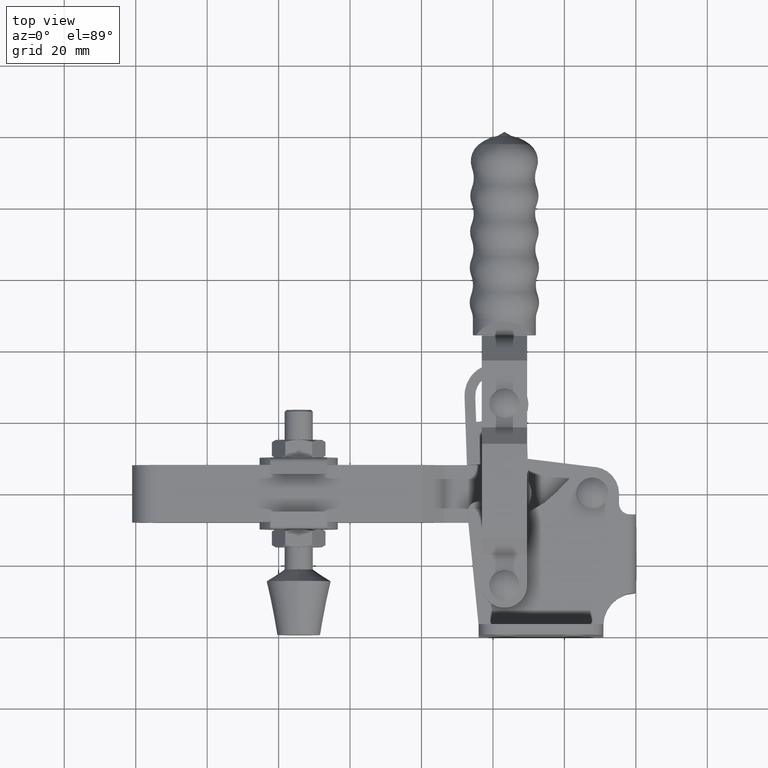
[diagram: clean part render]
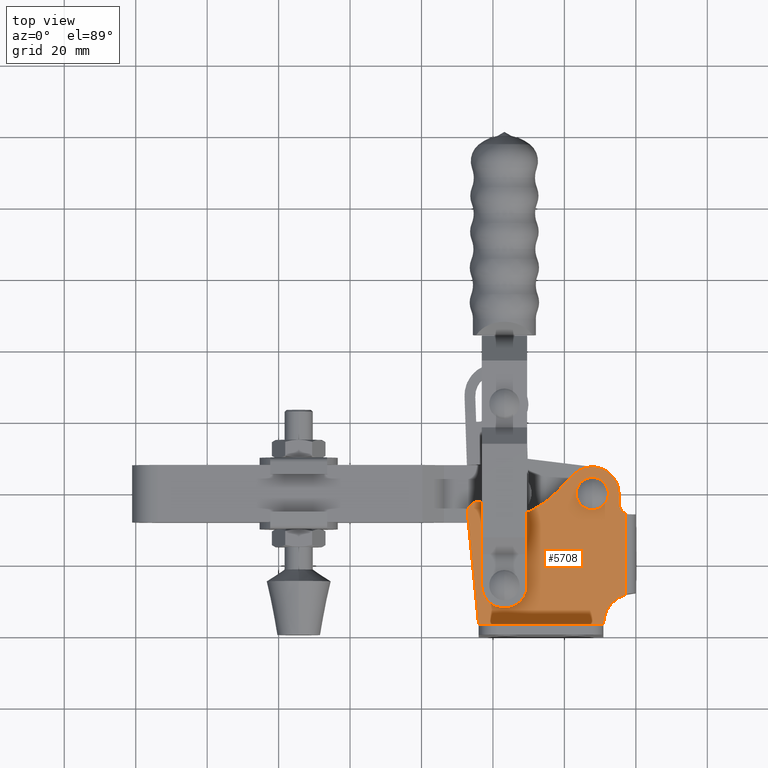
[diagram: same view with one face highlighted and labeled with its STEP entity id]
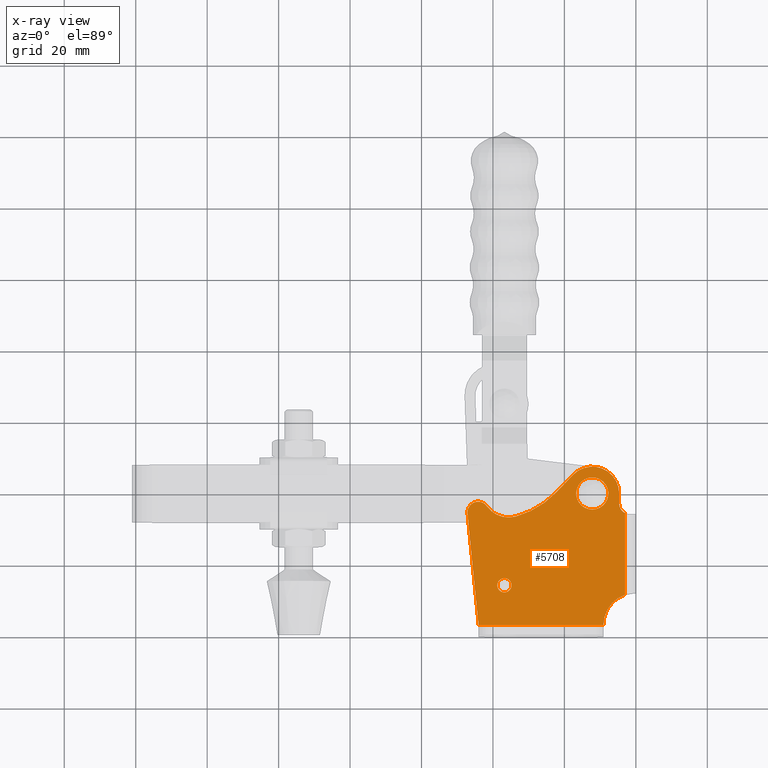
[diagram: x-ray of the same camera — body ghosted, the highlighted face saturated]
A machine part, top view. The second image highlights one B-rep face of the part: STEP entity #5708.
The next image is the same camera in x-ray: the body ghosted, the highlighted face saturated — about 0% of this face is hidden behind the body in this view.
In plain terms, the highlighted planar face has unit normal (0, 0, 1).
Its self-contained STEP definition (entity closure, byte-faithful):
#128 = AXIS2_PLACEMENT_3D ( 'NONE', #12003, #6435, #923 ) ;
#351 = CARTESIAN_POINT ( 'NONE',  ( -44.00000000000004300, 3.000000000000002700, 6.000000000000000000 ) ) ;
#510 = CIRCLE ( 'NONE', #9444, 4.500000000000000900 ) ;
#619 = DIRECTION ( 'NONE',  ( 0.0000000000000000000, 0.0000000000000000000, 1.000000000000000000 ) ) ;
#857 = DIRECTION ( 'NONE',  ( 0.0000000000000000000, 0.0000000000000000000, 1.000000000000000000 ) ) ;
#904 = CARTESIAN_POINT ( 'NONE',  ( -3.000000000000113700, 11.51997652578924300, 6.000000000000060400 ) ) ;
#905 = ORIENTED_EDGE ( 'NONE', *, *, #10791, .T. ) ;
#923 = DIRECTION ( 'NONE',  ( 1.000000000000000000, 0.0000000000000000000, 0.0000000000000000000 ) ) ;
#933 = DIRECTION ( 'NONE',  ( 0.0000000000000000000, 0.0000000000000000000, 1.000000000000000000 ) ) ;
#935 = DIRECTION ( 'NONE',  ( 1.000000000000000000, 0.0000000000000000000, 0.0000000000000000000 ) ) ;
#1101 = CIRCLE ( 'NONE', #11765, 3.000000000000231800 ) ;
#1164 = EDGE_LOOP ( 'NONE', ( #4916, #1462 ) ) ;
#1301 = CARTESIAN_POINT ( 'NONE',  ( -35.58457790342117700, 40.58726151478364800, 6.000000000000000000 ) ) ;
#1364 = CARTESIAN_POINT ( 'NONE',  ( -3.000000000000113700, 47.29999999999986900, 6.000000000000060400 ) ) ;
#1428 = CIRCLE ( 'NONE', #128, 8.999999999999952000 ) ;
#1462 = ORIENTED_EDGE ( 'NONE', *, *, #6730, .F. ) ;
#1730 = DIRECTION ( 'NONE',  ( -0.6911580781339635700, -0.7227036121607293100, 0.0000000000000000000 ) ) ;
#1738 = CARTESIAN_POINT ( 'NONE',  ( -12.19999999999998900, 39.79999999999994700, 6.000000000000000000 ) ) ;
#1780 = EDGE_CURVE ( 'NONE', #9026, #2691, #5710, .T. ) ;
#1848 = CARTESIAN_POINT ( 'NONE',  ( -44.14000000000007200, 34.49999999999997200, 6.000000000000000000 ) ) ;
#1851 = LINE ( 'NONE', #351, #11715 ) ;
#2092 = AXIS2_PLACEMENT_3D ( 'NONE', #5115, #11621, #6046 ) ;
#2183 = CARTESIAN_POINT ( 'NONE',  ( -33.56368271917250500, 33.36465930683400000, 6.000000000000000000 ) ) ;
#2186 = CIRCLE ( 'NONE', #3512, 4.500000000000000900 ) ;
#2223 = DIRECTION ( 'NONE',  ( 1.000000000000000000, 0.0000000000000000000, 0.0000000000000000000 ) ) ;
#2428 = EDGE_CURVE ( 'NONE', #2691, #6538, #5814, .T. ) ;
#2657 = VERTEX_POINT ( 'NONE', #904 ) ;
#2691 = VERTEX_POINT ( 'NONE', #3185 ) ;
#2704 = ORIENTED_EDGE ( 'NONE', *, *, #10260, .T. ) ;
#2782 = DIRECTION ( 'NONE',  ( -0.0000000000000000000, -0.0000000000000000000, -1.000000000000000000 ) ) ;
#2796 = CARTESIAN_POINT ( 'NONE',  ( -12.19999999999998900, 39.79999999999994700, 6.000000000000000000 ) ) ;
#2809 = DIRECTION ( 'NONE',  ( 1.000000000000000000, 0.0000000000000000000, 0.0000000000000000000 ) ) ;
#2906 = VERTEX_POINT ( 'NONE', #3861 ) ;
#2965 = CARTESIAN_POINT ( 'NONE',  ( -12.19999999999998900, 39.79999999999994700, 6.000000000000000000 ) ) ;
#3032 = DIRECTION ( 'NONE',  ( 1.000000000000000000, 0.0000000000000000000, 0.0000000000000000000 ) ) ;
#3057 = AXIS2_PLACEMENT_3D ( 'NONE', #3736, #9323, #2809 ) ;
#3185 = CARTESIAN_POINT ( 'NONE',  ( -17.62027709120572900, 44.98368558600440500, 6.000000000000000000 ) ) ;
#3314 = ORIENTED_EDGE ( 'NONE', *, *, #2428, .T. ) ;
#3353 = CARTESIAN_POINT ( 'NONE',  ( -44.00000000000004300, 3.000000000000000000, 6.000000000000005300 ) ) ;
#3365 = VECTOR ( 'NONE', #1730, 1000.000000000000000 ) ;
#3398 = VERTEX_POINT ( 'NONE', #2183 ) ;
#3486 = EDGE_CURVE ( 'NONE', #8190, #2657, #3878, .T. ) ;
#3512 = AXIS2_PLACEMENT_3D ( 'NONE', #10898, #4387, #9982 ) ;
#3545 = EDGE_CURVE ( 'NONE', #7548, #9026, #5196, .T. ) ;
#3575 = AXIS2_PLACEMENT_3D ( 'NONE', #1738, #857, #6384 ) ;
#3721 = DIRECTION ( 'NONE',  ( 1.000000000000000000, 0.0000000000000000000, 0.0000000000000000000 ) ) ;
#3736 = CARTESIAN_POINT ( 'NONE',  ( -36.80000000000016800, 14.09999999999989100, 6.000000000000000000 ) ) ;
#3861 = CARTESIAN_POINT ( 'NONE',  ( -38.80000000000016800, 14.09999999999989100, 6.000000000000000000 ) ) ;
#3878 = LINE ( 'NONE', #1364, #8838 ) ;
#3928 = CARTESIAN_POINT ( 'NONE',  ( -36.80000000000016800, 14.09999999999989100, 6.000000000000000000 ) ) ;
#4095 = ORIENTED_EDGE ( 'NONE', *, *, #11730, .T. ) ;
#4329 = VERTEX_POINT ( 'NONE', #10780 ) ;
#4387 = DIRECTION ( 'NONE',  ( 0.0000000000000000000, 0.0000000000000000000, 1.000000000000000000 ) ) ;
#4405 = EDGE_CURVE ( 'NONE', #8650, #7093, #6017, .T. ) ;
#4493 = CARTESIAN_POINT ( 'NONE',  ( -9.100000000000163100, 3.000000000000004000, 6.000000000000000000 ) ) ;
#4498 = CARTESIAN_POINT ( 'NONE',  ( -17.62027709120572900, 44.98368558600440500, 6.000000000000000000 ) ) ;
#4744 = CIRCLE ( 'NONE', #8511, 24.99999999999987900 ) ;
#4915 = CARTESIAN_POINT ( 'NONE',  ( -3.000000000000113700, 34.29629883308084700, 6.000000000000060400 ) ) ;
#4916 = ORIENTED_EDGE ( 'NONE', *, *, #6380, .F. ) ;
#5106 = ORIENTED_EDGE ( 'NONE', *, *, #3545, .T. ) ;
#5115 = CARTESIAN_POINT ( 'NONE',  ( -1.700000000000034800, 37.00000000000003600, 6.000000000000000000 ) ) ;
#5196 = LINE ( 'NONE', #5324, #7682 ) ;
#5219 = VERTEX_POINT ( 'NONE', #8764 ) ;
#5309 = CARTESIAN_POINT ( 'NONE',  ( -4.700000000000148500, 39.79999999999994700, 6.000000000000000000 ) ) ;
#5324 = CARTESIAN_POINT ( 'NONE',  ( -4.700000000000148500, 39.79999999999994700, 6.000000000000000000 ) ) ;
#5452 = EDGE_LOOP ( 'NONE', ( #8726, #8290 ) ) ;
#5518 = ORIENTED_EDGE ( 'NONE', *, *, #11605, .T. ) ;
#5555 = DIRECTION ( 'NONE',  ( 1.000000000000000000, 0.0000000000000000000, 0.0000000000000000000 ) ) ;
#5619 = EDGE_CURVE ( 'NONE', #9846, #4329, #510, .T. ) ;
#5708 = ADVANCED_FACE ( 'NONE', ( #11067, #8621, #8907 ), #10098, .T. ) ;
#5710 = CIRCLE ( 'NONE', #8962, 7.499999999999925400 ) ;
#5814 = LINE ( 'NONE', #4498, #3365 ) ;
#6017 = CIRCLE ( 'NONE', #10028, 3.000000000000231800 ) ;
#6046 = DIRECTION ( 'NONE',  ( 1.000000000000000000, 0.0000000000000000000, 0.0000000000000000000 ) ) ;
#6087 = EDGE_LOOP ( 'NONE', ( #9474, #8277, #5106, #11161, #3314, #2704, #5518, #4095, #9587, #8655, #11718, #905 ) ) ;
#6147 = CARTESIAN_POINT ( 'NONE',  ( -44.14000000000007200, 34.49999999999997200, 6.000000000000000000 ) ) ;
#6161 = CIRCLE ( 'NONE', #10635, 7.499999999999905900 ) ;
#6288 = EDGE_CURVE ( 'NONE', #4329, #9846, #2186, .T. ) ;
#6380 = EDGE_CURVE ( 'NONE', #5219, #2906, #7566, .T. ) ;
#6384 = DIRECTION ( 'NONE',  ( 1.000000000000000000, 0.0000000000000000000, -0.0000000000000000000 ) ) ;
#6435 = DIRECTION ( 'NONE',  ( -0.0000000000000000000, -0.0000000000000000000, -1.000000000000000000 ) ) ;
#6446 = DIRECTION ( 'NONE',  ( 0.0000000000000000000, 0.0000000000000000000, 1.000000000000000000 ) ) ;
#6538 = VERTEX_POINT ( 'NONE', #8626 ) ;
#6730 = EDGE_CURVE ( 'NONE', #2906, #5219, #7847, .T. ) ;
#6819 = DIRECTION ( 'NONE',  ( 0.09966041305298248300, -0.9950215083454774200, -0.0000000000000000000 ) ) ;
#6924 = CARTESIAN_POINT ( 'NONE',  ( -47.12506452503702500, 34.20101876084079600, 6.000000000000000000 ) ) ;
#7046 = DIRECTION ( 'NONE',  ( 1.000000000000000000, 0.0000000000000000000, 0.0000000000000000000 ) ) ;
#7093 = VERTEX_POINT ( 'NONE', #6924 ) ;
#7096 = DIRECTION ( 'NONE',  ( 1.000000000000000000, 0.0000000000000000000, 0.0000000000000000000 ) ) ;
#7536 = VECTOR ( 'NONE', #7046, 1000.000000000000000 ) ;
#7548 = VERTEX_POINT ( 'NONE', #9468 ) ;
#7566 = CIRCLE ( 'NONE', #9127, 2.000000000000001800 ) ;
#7682 = VECTOR ( 'NONE', #10889, 1000.000000000000000 ) ;
#7793 = DIRECTION ( 'NONE',  ( -0.0000000000000000000, -0.0000000000000000000, -1.000000000000000000 ) ) ;
#7830 = LINE ( 'NONE', #3353, #7536 ) ;
#7847 = CIRCLE ( 'NONE', #3057, 2.000000000000001800 ) ;
#8118 = VERTEX_POINT ( 'NONE', #11345 ) ;
#8190 = VERTEX_POINT ( 'NONE', #4915 ) ;
#8277 = ORIENTED_EDGE ( 'NONE', *, *, #8884, .T. ) ;
#8290 = ORIENTED_EDGE ( 'NONE', *, *, #6288, .F. ) ;
#8342 = CARTESIAN_POINT ( 'NONE',  ( -40.30000000000044500, 57.43999999999993400, 6.000000000000000000 ) ) ;
#8405 = EDGE_CURVE ( 'NONE', #8843, #10761, #7830, .T. ) ;
#8511 = AXIS2_PLACEMENT_3D ( 'NONE', #8342, #2782, #9289 ) ;
#8621 = FACE_OUTER_BOUND ( 'NONE', #6087, .T. ) ;
#8626 = CARTESIAN_POINT ( 'NONE',  ( -22.23240969598195700, 40.16104804665128800, 6.000000000000000000 ) ) ;
#8650 = VERTEX_POINT ( 'NONE', #9330 ) ;
#8655 = ORIENTED_EDGE ( 'NONE', *, *, #10906, .T. ) ;
#8726 = ORIENTED_EDGE ( 'NONE', *, *, #5619, .F. ) ;
#8738 = CARTESIAN_POINT ( 'NONE',  ( -44.00000000000004300, 3.000000000000000000, 6.000000000000005300 ) ) ;
#8764 = CARTESIAN_POINT ( 'NONE',  ( -34.80000000000016800, 14.09999999999989100, 6.000000000000000000 ) ) ;
#8780 = DIRECTION ( 'NONE',  ( -0.0000000000000000000, -1.000000000000000000, -0.0000000000000000000 ) ) ;
#8838 = VECTOR ( 'NONE', #8780, 1000.000000000000000 ) ;
#8843 = VERTEX_POINT ( 'NONE', #8738 ) ;
#8884 = EDGE_CURVE ( 'NONE', #8190, #7548, #11126, .T. ) ;
#8907 = FACE_BOUND ( 'NONE', #1164, .T. ) ;
#8962 = AXIS2_PLACEMENT_3D ( 'NONE', #2965, #933, #5555 ) ;
#9026 = VERTEX_POINT ( 'NONE', #5309 ) ;
#9127 = AXIS2_PLACEMENT_3D ( 'NONE', #3928, #9538, #3032 ) ;
#9289 = DIRECTION ( 'NONE',  ( 1.000000000000000000, 0.0000000000000000000, 0.0000000000000000000 ) ) ;
#9302 = DIRECTION ( 'NONE',  ( 0.0000000000000000000, 0.0000000000000000000, 1.000000000000000000 ) ) ;
#9323 = DIRECTION ( 'NONE',  ( 0.0000000000000000000, 0.0000000000000000000, 1.000000000000000000 ) ) ;
#9330 = CARTESIAN_POINT ( 'NONE',  ( -47.14000000000029900, 34.49999999999997200, 6.000000000000000000 ) ) ;
#9444 = AXIS2_PLACEMENT_3D ( 'NONE', #2796, #9302, #3721 ) ;
#9468 = CARTESIAN_POINT ( 'NONE',  ( -4.700000000000148500, 37.00000000000003600, 6.000000000000000000 ) ) ;
#9474 = ORIENTED_EDGE ( 'NONE', *, *, #3486, .F. ) ;
#9538 = DIRECTION ( 'NONE',  ( 0.0000000000000000000, 0.0000000000000000000, 1.000000000000000000 ) ) ;
#9587 = ORIENTED_EDGE ( 'NONE', *, *, #4405, .T. ) ;
#9638 = CARTESIAN_POINT ( 'NONE',  ( -12.19999999999998900, 44.29999999999994700, 6.000000000000000000 ) ) ;
#9846 = VERTEX_POINT ( 'NONE', #9638 ) ;
#9982 = DIRECTION ( 'NONE',  ( 1.000000000000000000, 0.0000000000000000000, 0.0000000000000000000 ) ) ;
#10028 = AXIS2_PLACEMENT_3D ( 'NONE', #1848, #6446, #935 ) ;
#10098 = PLANE ( 'NONE',  #3575 ) ;
#10260 = EDGE_CURVE ( 'NONE', #6538, #3398, #4744, .T. ) ;
#10635 = AXIS2_PLACEMENT_3D ( 'NONE', #1301, #7793, #2223 ) ;
#10761 = VERTEX_POINT ( 'NONE', #4493 ) ;
#10780 = CARTESIAN_POINT ( 'NONE',  ( -12.19999999999998900, 35.29999999999994000, 6.000000000000000000 ) ) ;
#10791 = EDGE_CURVE ( 'NONE', #10761, #2657, #1428, .T. ) ;
#10889 = DIRECTION ( 'NONE',  ( -0.0000000000000000000, 1.000000000000000000, -0.0000000000000000000 ) ) ;
#10898 = CARTESIAN_POINT ( 'NONE',  ( -12.19999999999998900, 39.79999999999994700, 6.000000000000000000 ) ) ;
#10906 = EDGE_CURVE ( 'NONE', #7093, #8843, #1851, .T. ) ;
#11067 = FACE_BOUND ( 'NONE', #5452, .T. ) ;
#11126 = CIRCLE ( 'NONE', #2092, 3.000000000000058200 ) ;
#11161 = ORIENTED_EDGE ( 'NONE', *, *, #1780, .T. ) ;
#11345 = CARTESIAN_POINT ( 'NONE',  ( -41.69559368669180800, 36.23921757565292300, 6.000000000000000000 ) ) ;
#11605 = EDGE_CURVE ( 'NONE', #3398, #8118, #6161, .T. ) ;
#11621 = DIRECTION ( 'NONE',  ( -0.0000000000000000000, -0.0000000000000000000, -1.000000000000000000 ) ) ;
#11715 = VECTOR ( 'NONE', #6819, 1000.000000000000000 ) ;
#11718 = ORIENTED_EDGE ( 'NONE', *, *, #8405, .T. ) ;
#11730 = EDGE_CURVE ( 'NONE', #8118, #8650, #1101, .T. ) ;
#11765 = AXIS2_PLACEMENT_3D ( 'NONE', #6147, #619, #7096 ) ;
#12003 = CARTESIAN_POINT ( 'NONE',  ( -0.1000000000002110300, 3.000000000000002700, 6.000000000000000000 ) ) ;